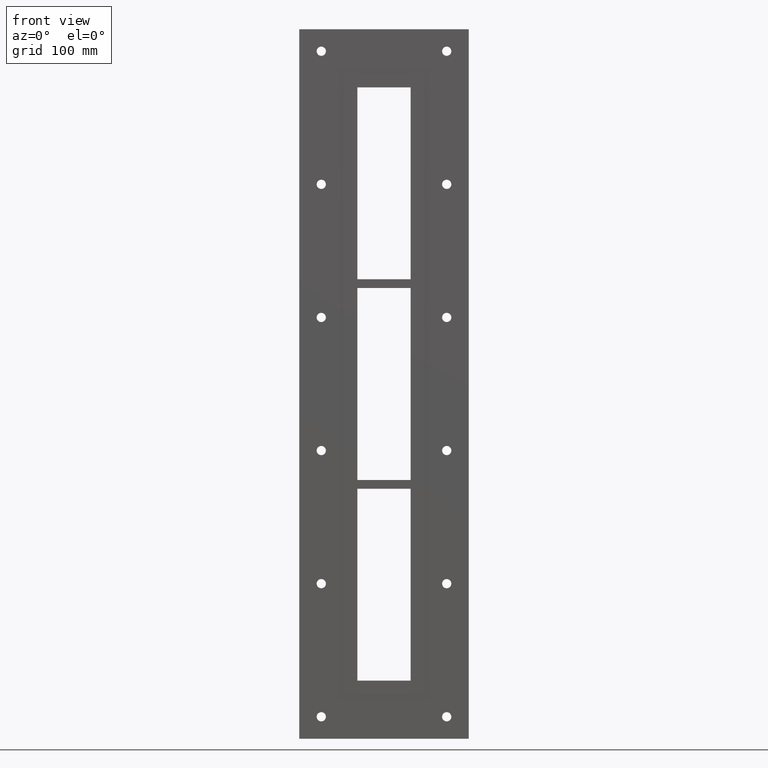
[diagram: clean part render]
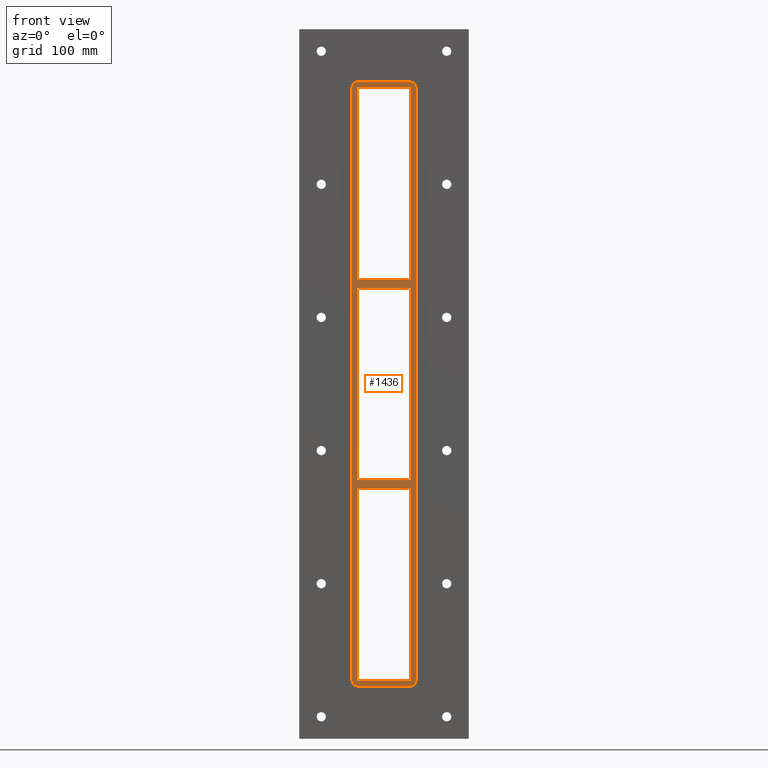
[diagram: same view with one face highlighted and labeled with its STEP entity id]
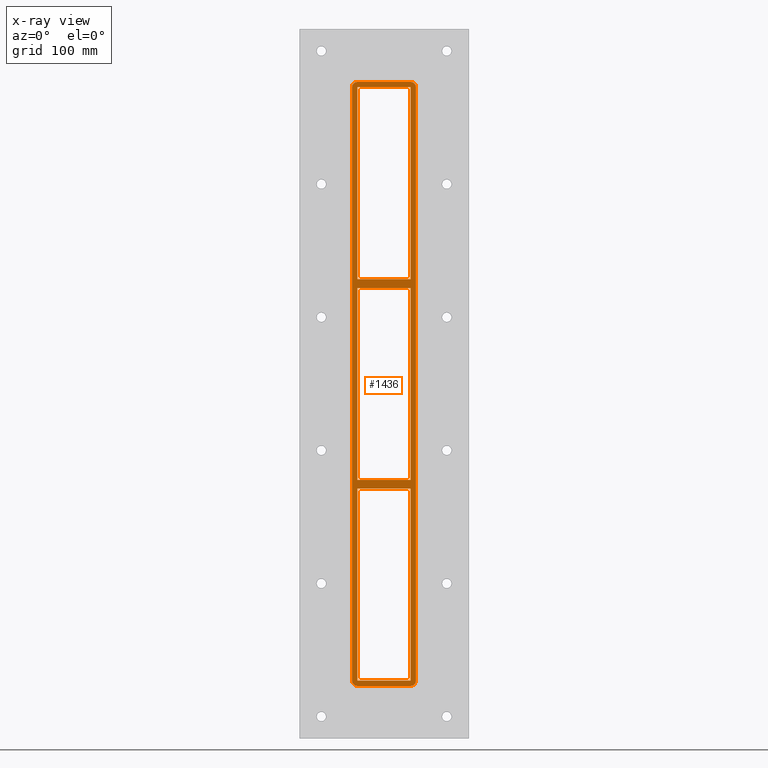
[diagram: x-ray of the same camera — body ghosted, the highlighted face saturated]
A machine part, front view. The second image highlights one B-rep face of the part: STEP entity #1436.
The next image is the same camera in x-ray: the body ghosted, the highlighted face saturated — about 0% of this face is hidden behind the body in this view.
In plain terms, the highlighted planar face has unit normal (0, 1, 0).
Its self-contained STEP definition (entity closure, byte-faithful):
#409=CARTESIAN_POINT('',(30.249999999996362,-3.0,108.99999999998919));
#410=VERTEX_POINT('',#409);
#411=CARTESIAN_POINT('',(-30.249999999997076,-3.0,108.99999999998772));
#412=VERTEX_POINT('',#411);
#413=CARTESIAN_POINT('',(30.249999999996362,-3.0,108.99999999998919));
#414=DIRECTION('',(-1.0,0.0,0.0));
#415=VECTOR('',#414,60.499999999993435);
#416=LINE('',#413,#415);
#417=EDGE_CURVE('',#410,#412,#416,.T.);
#449=CARTESIAN_POINT('',(-30.249999999997076,-3.0,118.99999999999909));
#450=VERTEX_POINT('',#449);
#451=CARTESIAN_POINT('',(30.24999999999903,-3.0,118.99999999999909));
#452=VERTEX_POINT('',#451);
#453=CARTESIAN_POINT('',(-30.249999999997076,-3.0,118.99999999999909));
#454=DIRECTION('',(1.0,0.0,0.0));
#455=VECTOR('',#454,60.499999999996106);
#456=LINE('',#453,#455);
#457=EDGE_CURVE('',#450,#452,#456,.T.);
#498=CARTESIAN_POINT('',(-30.249999999999986,-3.0,337.0));
#499=VERTEX_POINT('',#498);
#506=CARTESIAN_POINT('',(-30.249999999999986,-3.0,118.99999999999909));
#507=DIRECTION('',(0.0,0.0,1.0));
#508=VECTOR('',#507,218.00000000000097);
#509=LINE('',#506,#508);
#510=EDGE_CURVE('',#450,#499,#509,.T.);
#529=CARTESIAN_POINT('',(30.24999999999903,-3.0,-109.00000000000091));
#530=VERTEX_POINT('',#529);
#537=CARTESIAN_POINT('',(30.249999999999986,-3.0,108.99999999998917));
#538=DIRECTION('',(0.0,0.0,-1.0));
#539=VECTOR('',#538,217.99999999999008);
#540=LINE('',#537,#539);
#541=EDGE_CURVE('',#410,#530,#540,.T.);
#552=CARTESIAN_POINT('',(30.249999999999986,-3.0,337.0));
#553=VERTEX_POINT('',#552);
#554=CARTESIAN_POINT('',(30.249999999999986,-3.0,337.0));
#555=DIRECTION('',(0.0,0.0,-1.0));
#556=VECTOR('',#555,218.00000000000091);
#557=LINE('',#554,#556);
#558=EDGE_CURVE('',#553,#452,#557,.T.);
#582=CARTESIAN_POINT('',(30.249999999996362,-3.0,-119.00000000001083));
#583=VERTEX_POINT('',#582);
#584=CARTESIAN_POINT('',(-30.249999999997076,-3.0,-119.00000000001228));
#585=VERTEX_POINT('',#584);
#586=CARTESIAN_POINT('',(30.249999999996362,-3.0,-119.00000000001083));
#587=DIRECTION('',(-1.0,0.0,0.0));
#588=VECTOR('',#587,60.499999999993435);
#589=LINE('',#586,#588);
#590=EDGE_CURVE('',#583,#585,#589,.T.);
#622=CARTESIAN_POINT('',(-30.249999999997076,-3.0,-109.00000000000091));
#623=VERTEX_POINT('',#622);
#624=CARTESIAN_POINT('',(-30.249999999997076,-3.0,-109.00000000000091));
#625=DIRECTION('',(1.0,0.0,0.0));
#626=VECTOR('',#625,60.499999999996106);
#627=LINE('',#624,#626);
#628=EDGE_CURVE('',#623,#530,#627,.T.);
#654=CARTESIAN_POINT('',(-30.249999999999986,-3.0,-109.0000000000009));
#655=DIRECTION('',(0.0,0.0,1.0));
#656=VECTOR('',#655,217.99999999998863);
#657=LINE('',#654,#656);
#658=EDGE_CURVE('',#623,#412,#657,.T.);
#684=CARTESIAN_POINT('',(30.249999999999986,-3.0,-337.0));
#685=VERTEX_POINT('',#684);
#692=CARTESIAN_POINT('',(30.249999999999986,-3.0,-119.00000000001086));
#693=DIRECTION('',(0.0,0.0,-1.0));
#694=VECTOR('',#693,217.9999999999892);
#695=LINE('',#692,#694);
#696=EDGE_CURVE('',#583,#685,#695,.T.);
#1067=CARTESIAN_POINT('',(-30.249999999999986,-3.0,-337.0));
#1068=VERTEX_POINT('',#1067);
#1069=CARTESIAN_POINT('',(-30.249999999999986,-3.0,-337.0));
#1070=DIRECTION('',(0.0,0.0,1.0));
#1071=VECTOR('',#1070,217.99999999998772);
#1072=LINE('',#1069,#1071);
#1073=EDGE_CURVE('',#1068,#585,#1072,.T.);
#1098=CARTESIAN_POINT('',(36.25,-3.0,-336.99999999999994));
#1099=VERTEX_POINT('',#1098);
#1106=CARTESIAN_POINT('',(30.250000000000004,-3.0,-343.00000000000006));
#1107=VERTEX_POINT('',#1106);
#1108=CARTESIAN_POINT('',(30.250000000000004,-3.0,-337.0));
#1109=DIRECTION('',(0.0,1.0,0.0));
#1110=DIRECTION('',(0.707106781186551,0.0,-0.707106781186544));
#1111=AXIS2_PLACEMENT_3D('',#1108,#1109,#1110);
#1112=CIRCLE('',#1111,6.0);
#1113=EDGE_CURVE('',#1099,#1107,#1112,.T.);
#1163=CARTESIAN_POINT('',(-30.250000000000004,-3.0,-343.00000000000006));
#1164=VERTEX_POINT('',#1163);
#1165=CARTESIAN_POINT('',(-30.25,-3.0,-343.00000000000006));
#1166=DIRECTION('',(1.0,0.0,0.0));
#1167=VECTOR('',#1166,60.5);
#1168=LINE('',#1165,#1167);
#1169=EDGE_CURVE('',#1164,#1107,#1168,.T.);
#1210=CARTESIAN_POINT('',(36.25,-3.0,337.0));
#1211=VERTEX_POINT('',#1210);
#1218=CARTESIAN_POINT('',(36.25,-3.0,-336.99999999999994));
#1219=DIRECTION('',(0.0,0.0,1.0));
#1220=VECTOR('',#1219,674.0);
#1221=LINE('',#1218,#1220);
#1222=EDGE_CURVE('',#1099,#1211,#1221,.T.);
#1235=CARTESIAN_POINT('',(-36.25,-3.0,-337.0));
#1236=VERTEX_POINT('',#1235);
#1237=CARTESIAN_POINT('',(-30.250000000000004,-3.0,-337.0));
#1238=DIRECTION('',(0.0,1.0,0.0));
#1239=DIRECTION('',(-0.707106781186551,0.0,-0.707106781186544));
#1240=AXIS2_PLACEMENT_3D('',#1237,#1238,#1239);
#1241=CIRCLE('',#1240,6.0);
#1242=EDGE_CURVE('',#1164,#1236,#1241,.T.);
#1284=CARTESIAN_POINT('',(30.250000000000004,-3.0,343.00000000000006));
#1285=VERTEX_POINT('',#1284);
#1292=CARTESIAN_POINT('',(30.250000000000004,-3.0,337.0));
#1293=DIRECTION('',(0.0,1.0,0.0));
#1294=DIRECTION('',(0.707106781186551,0.0,0.707106781186544));
#1295=AXIS2_PLACEMENT_3D('',#1292,#1293,#1294);
#1296=CIRCLE('',#1295,6.0);
#1297=EDGE_CURVE('',#1285,#1211,#1296,.T.);
#1310=CARTESIAN_POINT('',(-36.25,-3.0,336.99999999999994));
#1311=VERTEX_POINT('',#1310);
#1312=CARTESIAN_POINT('',(-36.25,-3.0,336.99999999999994));
#1313=DIRECTION('',(0.0,0.0,-1.0));
#1314=VECTOR('',#1313,674.0);
#1315=LINE('',#1312,#1314);
#1316=EDGE_CURVE('',#1311,#1236,#1315,.T.);
#1357=CARTESIAN_POINT('',(-30.250000000000004,-3.0,343.00000000000006));
#1358=VERTEX_POINT('',#1357);
#1365=CARTESIAN_POINT('',(30.25,-3.0,343.00000000000006));
#1366=DIRECTION('',(-1.0,0.0,0.0));
#1367=VECTOR('',#1366,60.5);
#1368=LINE('',#1365,#1367);
#1369=EDGE_CURVE('',#1285,#1358,#1368,.T.);
#1382=CARTESIAN_POINT('',(-30.250000000000004,-3.0,337.0));
#1383=DIRECTION('',(0.0,1.0,0.0));
#1384=DIRECTION('',(-0.707106781186551,0.0,0.707106781186544));
#1385=AXIS2_PLACEMENT_3D('',#1382,#1383,#1384);
#1386=CIRCLE('',#1385,6.0);
#1387=EDGE_CURVE('',#1311,#1358,#1386,.T.);
#1393=CARTESIAN_POINT('',(0.0,-3.0,0.0));
#1394=DIRECTION('',(0.0,1.0,0.0));
#1395=DIRECTION('',(0.0,0.0,1.0));
#1396=AXIS2_PLACEMENT_3D('',#1393,#1394,#1395);
#1397=PLANE('',#1396);
#1398=ORIENTED_EDGE('',*,*,#1242,.F.);
#1399=ORIENTED_EDGE('',*,*,#1169,.T.);
#1400=ORIENTED_EDGE('',*,*,#1113,.F.);
#1401=ORIENTED_EDGE('',*,*,#1222,.T.);
#1402=ORIENTED_EDGE('',*,*,#1297,.F.);
#1403=ORIENTED_EDGE('',*,*,#1369,.T.);
#1404=ORIENTED_EDGE('',*,*,#1387,.F.);
#1405=ORIENTED_EDGE('',*,*,#1316,.T.);
#1406=EDGE_LOOP('',(#1398,#1399,#1400,#1401,#1402,#1403,#1404,#1405));
#1407=FACE_OUTER_BOUND('',#1406,.T.);
#1408=ORIENTED_EDGE('',*,*,#510,.T.);
#1409=CARTESIAN_POINT('',(-30.249999999999986,-3.0,337.0));
#1410=DIRECTION('',(1.0,0.0,0.0));
#1411=VECTOR('',#1410,60.499999999999972);
#1412=LINE('',#1409,#1411);
#1413=EDGE_CURVE('',#499,#553,#1412,.T.);
#1414=ORIENTED_EDGE('',*,*,#1413,.T.);
#1415=ORIENTED_EDGE('',*,*,#558,.T.);
#1416=ORIENTED_EDGE('',*,*,#457,.F.);
#1417=EDGE_LOOP('',(#1408,#1414,#1415,#1416));
#1418=FACE_BOUND('',#1417,.T.);
#1419=ORIENTED_EDGE('',*,*,#417,.F.);
#1420=ORIENTED_EDGE('',*,*,#541,.T.);
#1421=ORIENTED_EDGE('',*,*,#628,.F.);
#1422=ORIENTED_EDGE('',*,*,#658,.T.);
#1423=EDGE_LOOP('',(#1419,#1420,#1421,#1422));
#1424=FACE_BOUND('',#1423,.T.);
#1425=ORIENTED_EDGE('',*,*,#590,.F.);
#1426=ORIENTED_EDGE('',*,*,#696,.T.);
#1427=CARTESIAN_POINT('',(30.249999999999986,-3.0,-337.0));
#1428=DIRECTION('',(-1.0,0.0,0.0));
#1429=VECTOR('',#1428,60.499999999999972);
#1430=LINE('',#1427,#1429);
#1431=EDGE_CURVE('',#685,#1068,#1430,.T.);
#1432=ORIENTED_EDGE('',*,*,#1431,.T.);
#1433=ORIENTED_EDGE('',*,*,#1073,.T.);
#1434=EDGE_LOOP('',(#1425,#1426,#1432,#1433));
#1435=FACE_BOUND('',#1434,.T.);
#1436=ADVANCED_FACE('',(#1407,#1418,#1424,#1435),#1397,.F.);